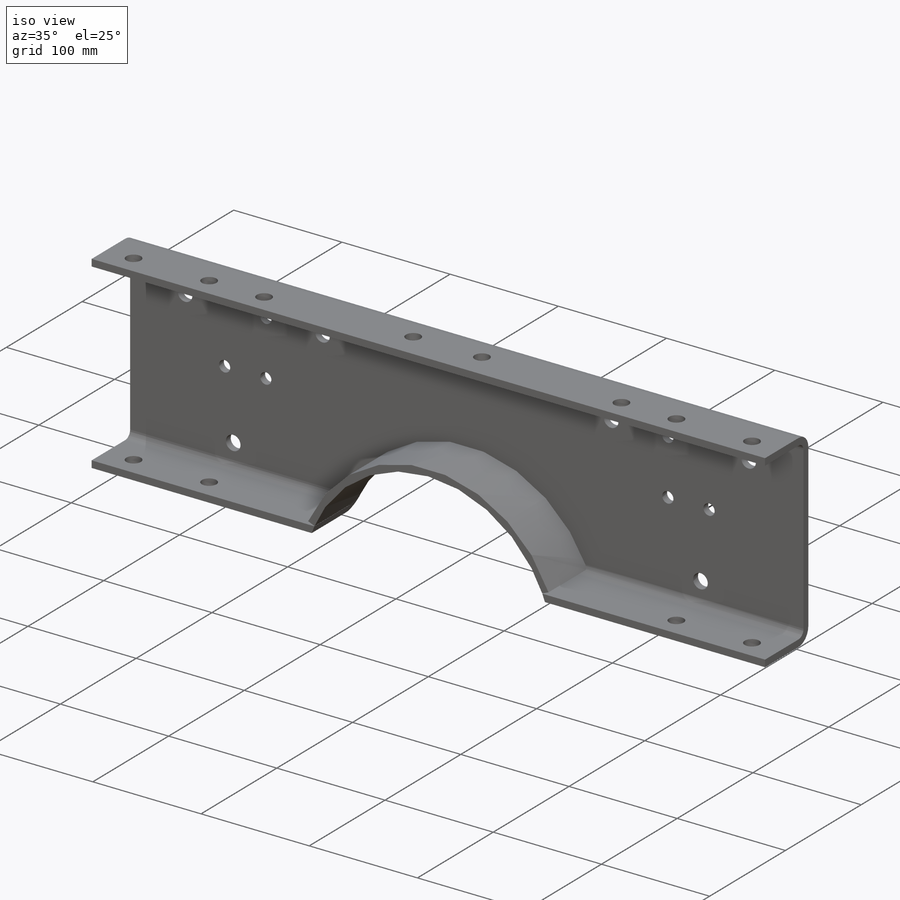
[diagram: iso view]
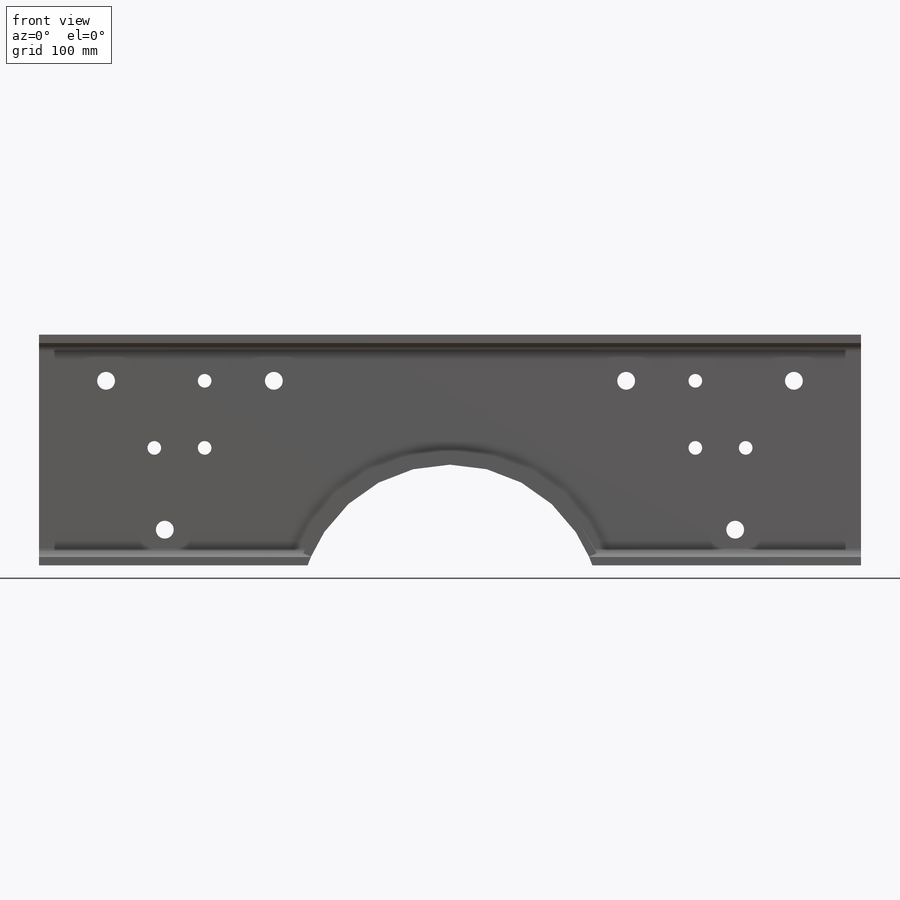
[diagram: front view]
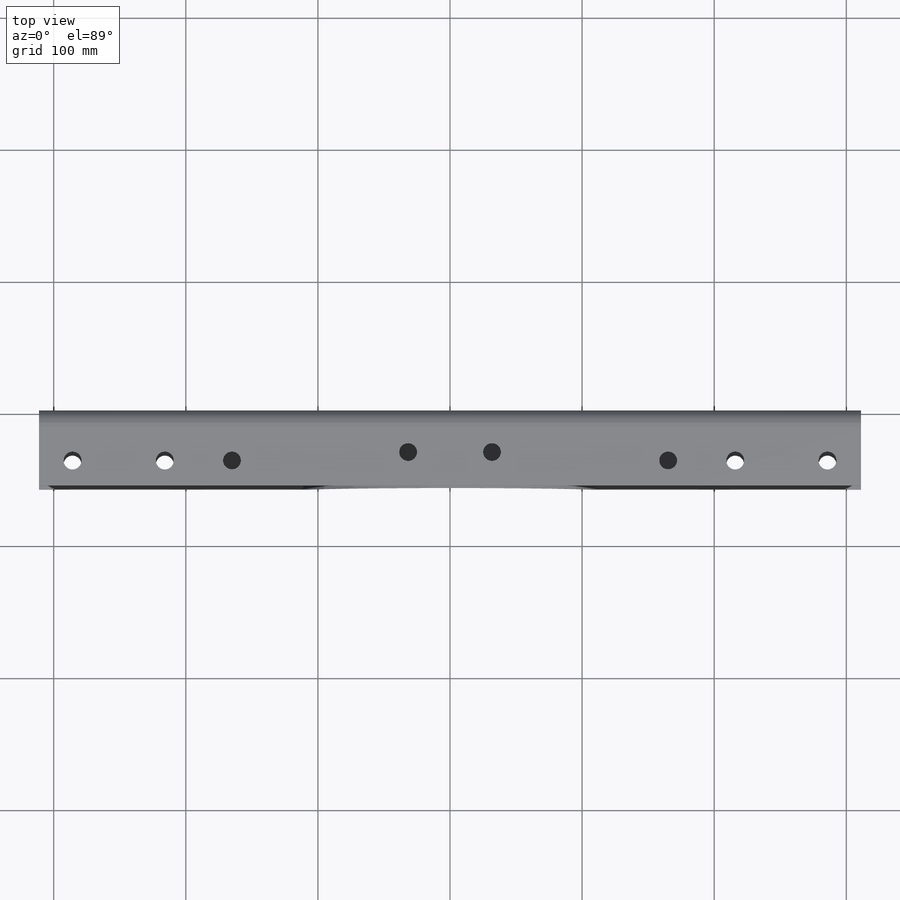
[diagram: top view]
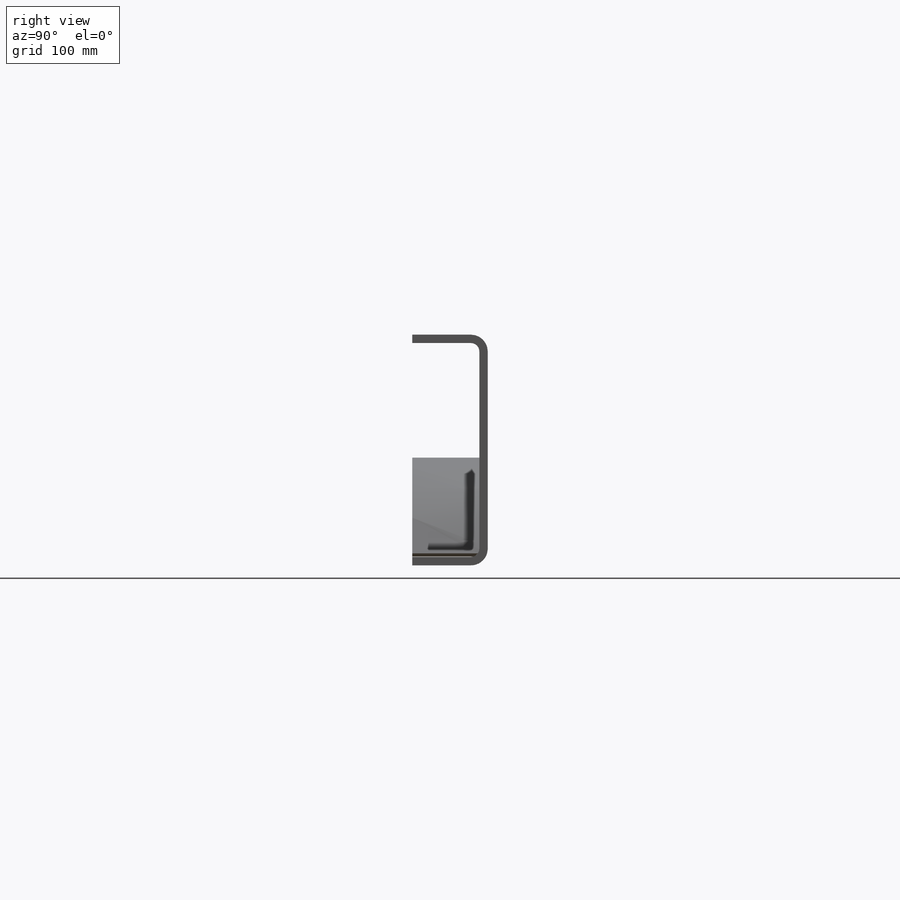
[diagram: right view]
SOLIDWORKS PART (.sldprt)
format: sldprt  version: not decoded by parser v0  size: 1,682,432 bytes
history: native  units: mm
features: sketch x13, cut_extrude x11, plane x1 (+9 scaffold rows collapsed)
feature tree (34):
  scaffold x9  (default folders/planes/origin — collapsed)
  plane  "Side"
  sketch  "Sketch1"  dims[c1.D1=174.625mm c1.D2=57.15mm c2.D1=774.7mm c2.D5=6.35mm c2.D6=1.0mm c2.D7=6.35mm]
  sketch  "Sketch2"  dims[D1=25.4mm D2=57.15mm D3=136.525mm D4=~44.033187mm]
  cut_extrude  "Cut-Extrude2"  [1 undecoded]
  sketch  "Sketch3"  dims[c1.D1=~18.30668mm c1.D2=~18.30668mm c1.D3=~13.49375mm c2.D1=63.5mm c2.D2=38.1mm c2.D4=304.8mm]
  cut_extrude  "Cut-Extrude3"  [1 undecoded]
  sketch  "Sketch4"  dims[c1.D1=~13.49375mm c1.D2=~10.31875mm c1.D3=~7.14375mm c1.D21=~10.31875mm c1.D22=~10.31875mm c1.D4=0.0mm c1.D5=58.7375mm c1.D6=117.475mm c1.D7=171.45mm c1.D8=203.2mm c1.D9=265.1125mm c1.D10=100.33mm c1.D11=298.45mm c1.D12=0.0mm c1.D13=25.4mm c1.D14=34.925mm c1.D15=50.8mm c1.D16=57.15mm c1.D17=88.9mm c1.D18=100.0125mm c1.D19=120.65mm c1.D20=139.7mm c2.D19=120.65mm c2.D22=247.65mm]
  cut_extrude  "Cut-Web Holes -001"  [1 undecoded]
  sketch  "Sketch5"  dims[c1.D1=~15.624679mm c1.D2=~20.001985mm c1.D3=~13.49375mm c1.D4=~10.31875mm c2.D1=63.5mm c2.D2=406.4mm]
  cut_extrude  "Cut-Top Flange -001"  [1 undecoded]
  sketch  "Sketch6"  dims[c1.D1=~17.629575mm c1.D2=~17.629575mm c1.D4=~10.31875mm c1.D5=~13.49375mm c2.D1=63.5mm c2.D2=330.2mm c2.D3=244.475mm]
  cut_extrude  "Cut-Bottom Flange -001"  [1 undecoded]
  sketch  "Sketch7"  dims[D1=~13.49375mm D16=~7.14375mm D2=0.0mm D3=57.15mm D4=127.0mm D5=215.9mm D6=263.525mm D7=0.0mm D8=39.6875mm D9=57.15mm D10=68.2625mm D11=96.8375mm D12=117.475mm D13=120.65mm D14=125.4125mm D15=136.525mm]
  cut_extrude  "Cut-Web Holes -002"  [1 undecoded]
  sketch  "Sketch8"  dims[c1.D1=~16.863016mm c1.D2=~13.49375mm c1.D3=~17.338501mm c1.D4=~17.338501mm c1.D5=~10.31875mm c2.D1=133.35mm c2.D3=165.1mm c2.D4=47.625mm]
  cut_extrude  "Cut-Top Flange -002"  [1 undecoded]
  sketch  "Sketch9"  dims[c1.D1=~22.749262mm c1.D2=~22.749262mm c1.D3=~13.49375mm c2.D1=63.5mm c2.D2=330.2mm c2.D4=31.75mm]
  cut_extrude  "Cut-Bottom Flange -002"  [1 undecoded]
  sketch  "Sketch10"  dims[c1.D1=~119.889287mm c1.D2=114.3mm c1.D3=~13.49375mm c2.D1=~60.411739mm c2.D2=~60.411739mm c2.D3=90.0deg c3.D3=6.35mm c3.D1=~60.411739mm c3.D2=~66.761739mm c4.D1=~46.777548mm c4.D2=~66.761739mm c5.D1=76.2mm c5.D4=0.0mm c5.D5=203.2mm c5.D6=215.9mm c5.D7=0.0mm c5.D8=26.9875mm c5.D9=88.9mm c5.D10=139.7mm c5.D11=133.35mm c5.D12=260.35mm c5.D13=133.35mm c5.D14=260.35mm]
  cut_extrude  "Cut-Web Holes -003"  [1 undecoded]
  sketch  "Sketch11"  dims[c1.D1=~13.49375mm c1.D2=~13.49375mm c1.D3=~13.49375mm c1.D4=~13.49375mm c2.D2=330.2mm c2.D3=63.5mm c2.D4=31.75mm]
  cut_extrude  "Cut-Top Flange -003"  [1 undecoded]
  sketch  "Sketch12"  dims[D1=6.35mm D5=6.35mm D6=1.0mm D7=5.0mm]
  sketch  "Sketch14"  dims[D1=254.0mm]
  cut_extrude  "Cut-Extrude4"  [1 undecoded]
decode coverage: 13 of 24 modeling features carry decoded parameters
note: ~ marks probable driven/reference dimensions
note: 11 parameter values undecoded
summary: no parameter record found for 11 features
note: suppression state not decoded; provenance and decode notes live in map.json
